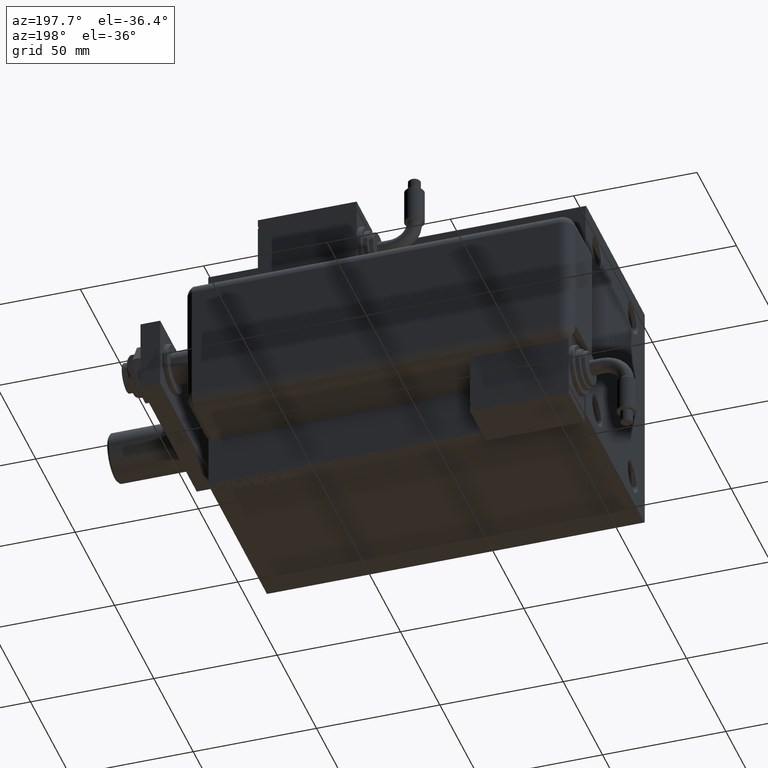
[diagram: clean part render]
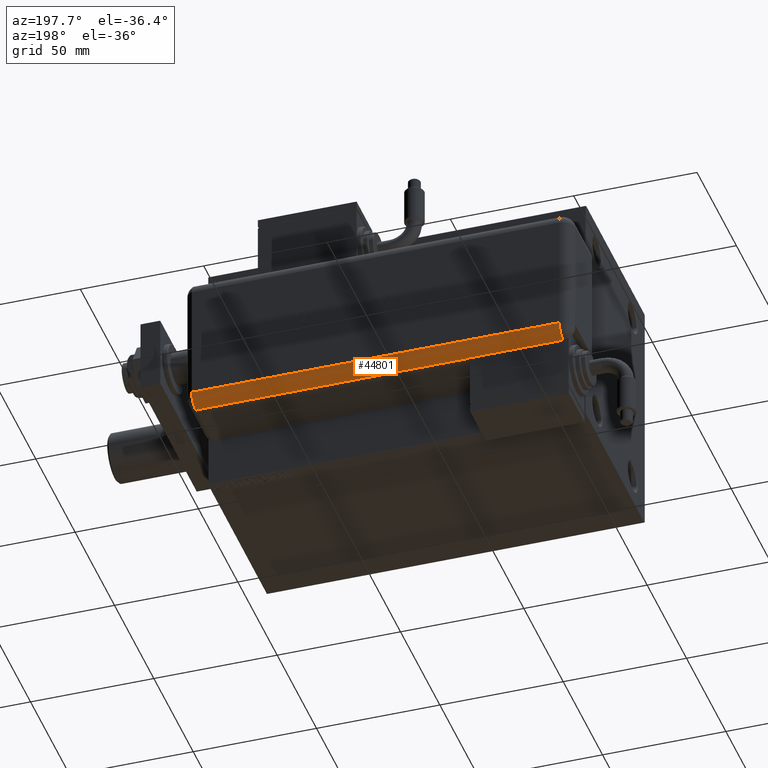
[diagram: same view with one face highlighted and labeled with its STEP entity id]
A machine part, auxiliary view. The second image highlights one B-rep face of the part: STEP entity #44801.
In plain terms, the highlighted cylindrical surface (edge-blend (fillet) strip) has radius 5 mm, axis along (-1, -0, -0).
Its self-contained STEP definition (entity closure, byte-faithful):
#83 = DIRECTION ( 'NONE',  ( -0.000000000000000000, -0.000000000000000000, 1.000000000000000000 ) ) ;
#2036 = EDGE_CURVE ( 'NONE', #38381, #42705, #48750, .T. ) ;
#3388 = VECTOR ( 'NONE', #16293, 1000.000000000000000 ) ;
#5952 = EDGE_CURVE ( 'NONE', #43412, #19537, #8348, .T. ) ;
#6353 = DIRECTION ( 'NONE',  ( 1.000000000000000000, -6.383782391594648845E-14, 0.000000000000000000 ) ) ;
#8348 = CIRCLE ( 'NONE', #52946, 5.000000000000000888 ) ;
#8673 = CARTESIAN_POINT ( 'NONE',  ( 28.99599839871871154, 20.99999999999997868, 154.0000000000000000 ) ) ;
#11225 = ORIENTED_EDGE ( 'NONE', *, *, #36120, .F. ) ;
#11253 = CARTESIAN_POINT ( 'NONE',  ( 23.99999999999999289, 25.79999999999998295, 5.000000000000004441 ) ) ;
#12197 = EDGE_CURVE ( 'NONE', #19537, #38302, #44554, .T. ) ;
#12210 = AXIS2_PLACEMENT_3D ( 'NONE', #31056, #20583, #50751 ) ;
#15535 = DIRECTION ( 'NONE',  ( -0.000000000000000000, 0.000000000000000000, -1.000000000000000000 ) ) ;
#16139 = EDGE_CURVE ( 'NONE', #46590, #38302, #26863, .T. ) ;
#16293 = DIRECTION ( 'NONE',  ( 0.000000000000000000, 0.000000000000000000, -1.000000000000000000 ) ) ;
#17932 = ORIENTED_EDGE ( 'NONE', *, *, #2036, .F. ) ;
#19537 = VERTEX_POINT ( 'NONE', #31251 ) ;
#19846 = DIRECTION ( 'NONE',  ( -0.000000000000000000, -0.000000000000000000, 1.000000000000000000 ) ) ;
#20583 = DIRECTION ( 'NONE',  ( 0.000000000000000000, 0.000000000000000000, -1.000000000000000000 ) ) ;
#22638 = CARTESIAN_POINT ( 'NONE',  ( 28.99599839871871154, 20.99999999999999289, 43.00000000000000000 ) ) ;
#26406 = CARTESIAN_POINT ( 'NONE',  ( 28.99999999999999645, 20.79999999999998295, 43.00000000000000000 ) ) ;
#26569 = VECTOR ( 'NONE', #83, 1000.000000000000000 ) ;
#26863 = CIRCLE ( 'NONE', #50214, 5.000000000000000888 ) ;
#28155 = LINE ( 'NONE', #47838, #61589 ) ;
#31056 = CARTESIAN_POINT ( 'NONE',  ( 23.99999999999999289, 20.79999999999998295, 154.0000000000000000 ) ) ;
#31251 = CARTESIAN_POINT ( 'NONE',  ( 23.99999999999999289, 25.79999999999998295, 154.0000000000000000 ) ) ;
#33507 = AXIS2_PLACEMENT_3D ( 'NONE', #59997, #15535, #6353 ) ;
#36120 = EDGE_CURVE ( 'NONE', #42705, #43412, #28155, .T. ) ;
#38191 = CARTESIAN_POINT ( 'NONE',  ( 28.99999999999999645, 20.79999999999998295, 154.0000000000000000 ) ) ;
#38302 = VERTEX_POINT ( 'NONE', #11253 ) ;
#38364 = ORIENTED_EDGE ( 'NONE', *, *, #12197, .F. ) ;
#38381 = VERTEX_POINT ( 'NONE', #22638 ) ;
#39267 = EDGE_LOOP ( 'NONE', ( #17932, #51944, #57197, #38364, #57675, #11225 ) ) ;
#39607 = CARTESIAN_POINT ( 'NONE',  ( 23.99999999999999289, 20.79999999999998295, 154.0000000000000000 ) ) ;
#40557 = DIRECTION ( 'NONE',  ( -1.000000000000000000, 0.000000000000000000, 0.000000000000000000 ) ) ;
#41211 = CYLINDRICAL_SURFACE ( 'NONE', #12210, 5.000000000000000888 ) ;
#42705 = VERTEX_POINT ( 'NONE', #26406 ) ;
#43245 = LINE ( 'NONE', #8673, #26569 ) ;
#43351 = CARTESIAN_POINT ( 'NONE',  ( 23.99999999999999289, 20.79999999999998295, 5.000000000000004441 ) ) ;
#43412 = VERTEX_POINT ( 'NONE', #38191 ) ;
#44554 = LINE ( 'NONE', #57694, #3388 ) ;
#44801 = ADVANCED_FACE ( 'NONE', ( #49814 ), #41211, .T. ) ;
#46590 = VERTEX_POINT ( 'NONE', #61088 ) ;
#47838 = CARTESIAN_POINT ( 'NONE',  ( 28.99999999999999645, 20.79999999999998295, 154.0000000000000000 ) ) ;
#48750 = CIRCLE ( 'NONE', #33507, 5.000000000000000888 ) ;
#49814 = FACE_OUTER_BOUND ( 'NONE', #39267, .T. ) ;
#50214 = AXIS2_PLACEMENT_3D ( 'NONE', #43351, #19846, #58283 ) ;
#50751 = DIRECTION ( 'NONE',  ( -1.000000000000000000, 0.000000000000000000, 0.000000000000000000 ) ) ;
#51571 = EDGE_CURVE ( 'NONE', #46590, #38381, #43245, .T. ) ;
#51944 = ORIENTED_EDGE ( 'NONE', *, *, #51571, .F. ) ;
#52946 = AXIS2_PLACEMENT_3D ( 'NONE', #39607, #60263, #40557 ) ;
#57197 = ORIENTED_EDGE ( 'NONE', *, *, #16139, .T. ) ;
#57675 = ORIENTED_EDGE ( 'NONE', *, *, #5952, .F. ) ;
#57687 = DIRECTION ( 'NONE',  ( -0.000000000000000000, -0.000000000000000000, 1.000000000000000000 ) ) ;
#57694 = CARTESIAN_POINT ( 'NONE',  ( 23.99999999999999289, 25.79999999999998295, 154.0000000000000000 ) ) ;
#58283 = DIRECTION ( 'NONE',  ( -1.000000000000000000, 0.000000000000000000, 0.000000000000000000 ) ) ;
#59997 = CARTESIAN_POINT ( 'NONE',  ( 23.99999999999999289, 20.79999999999998295, 43.00000000000000000 ) ) ;
#60263 = DIRECTION ( 'NONE',  ( -0.000000000000000000, -0.000000000000000000, 1.000000000000000000 ) ) ;
#61088 = CARTESIAN_POINT ( 'NONE',  ( 28.99599839871871154, 21.00000000000000000, 5.000000000000004441 ) ) ;
#61589 = VECTOR ( 'NONE', #57687, 1000.000000000000000 ) ;